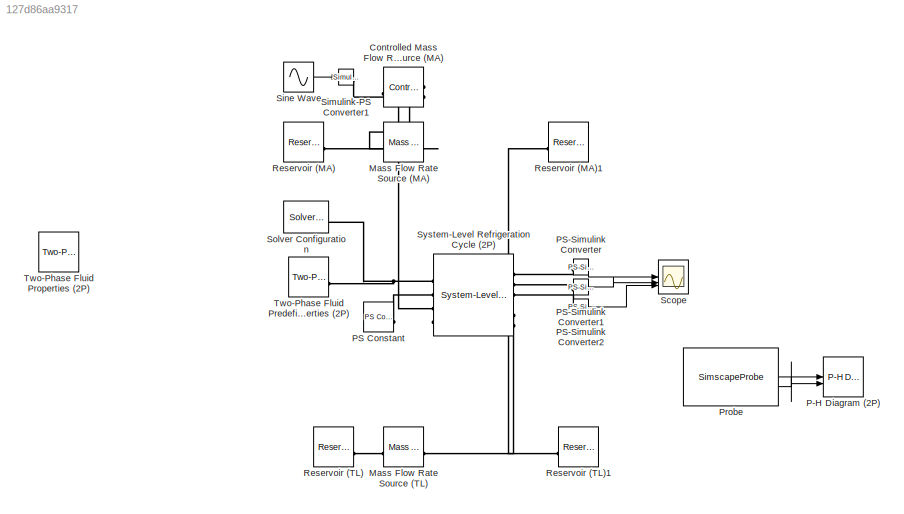
MODEL slx_127d86aa9317
KIND model
CONFIG AbsTol = 1e-3
CONFIG EnableMultiTasking = off
CONFIG FixedStep = auto
CONFIG MaxStep = auto
CONFIG MinStep = auto
CONFIG RelTol = 1e-3
CONFIG SampleTimeConstraint = Unconstrained
CONFIG SolverName = VariableStepAuto
CONFIG StartTime = 0.0
CONFIG StopTime = 600
BLOCK [Reference] Controlled Mass Flow Rate Source (MA)  REF=fl_lib/Moist Air/Sources/Controlled Mass Flow
Rate Source (MA)
  NameLocation = top
  SourceBlock = fl_lib/Moist Air/Sources/Controlled Mass Flow\nRate Source (MA)
  SourceType = Controlled Mass Flow\nRate Source (MA)
BLOCK [Reference] Mass Flow Rate Source (MA)  REF=fl_lib/Moist Air/Sources/Mass Flow Rate
Source (MA)
  Commented = on
  SourceBlock = fl_lib/Moist Air/Sources/Mass Flow Rate\nSource (MA)
  SourceType = Mass Flow Rate\nSource (MA)
BLOCK [Reference] Mass Flow Rate Source (TL)  REF=fl_lib/Thermal Liquid/Sources/Mass Flow Rate
Source (TL)
  SourceBlock = fl_lib/Thermal Liquid/Sources/Mass Flow Rate\nSource (TL)
  SourceType = Mass Flow Rate\nSource (TL)
BLOCK [Reference] P-H Diagram (2P)  REF=SimscapeFluids_lib/Two-Phase Fluid/Utilities/P-H Diagram (2P)
  SourceBlock = SimscapeFluids_lib/Two-Phase Fluid/Utilities/P-H Diagram (2P)
  SourceType = P-H Diagram (2P)
  UserDataPersistent = on
BLOCK [Reference] PS Constant  REF=fl_lib/Physical Signals/Sources/PS Constant
  SourceBlock = fl_lib/Physical Signals/Sources/PS Constant
  SourceType = PS Constant
BLOCK [Reference] PS-Simulink Converter  REF=nesl_utility/PS-Simulink
Converter
  SourceBlock = nesl_utility/PS-Simulink\nConverter
  SourceType = PS-Simulink\nConverter
BLOCK [Reference] PS-Simulink Converter1  REF=nesl_utility/PS-Simulink
Converter
  SourceBlock = nesl_utility/PS-Simulink\nConverter
  SourceType = PS-Simulink\nConverter
BLOCK [Reference] PS-Simulink Converter2  REF=nesl_utility/PS-Simulink
Converter
  SourceBlock = nesl_utility/PS-Simulink\nConverter
  SourceType = PS-Simulink\nConverter
BLOCK [SimscapeProbe] Probe
  BoundBlock = 11
  Variables = {h_cycle, p_cycle}
BLOCK [Reference] Reservoir (MA)  REF=fl_lib/Moist Air/Elements/Reservoir (MA)
  SourceBlock = fl_lib/Moist Air/Elements/Reservoir (MA)
  SourceType = Reservoir (MA)
BLOCK [Reference] Reservoir (MA)1  REF=fl_lib/Moist Air/Elements/Reservoir (MA)
  SourceBlock = fl_lib/Moist Air/Elements/Reservoir (MA)
  SourceType = Reservoir (MA)
BLOCK [Reference] Reservoir (TL)  REF=fl_lib/Thermal Liquid/Elements/Reservoir (TL)
  SourceBlock = fl_lib/Thermal Liquid/Elements/Reservoir (TL)
  SourceType = Reservoir (TL)
BLOCK [Reference] Reservoir (TL)1  REF=fl_lib/Thermal Liquid/Elements/Reservoir (TL)
  SourceBlock = fl_lib/Thermal Liquid/Elements/Reservoir (TL)
  SourceType = Reservoir (TL)
BLOCK [Scope] Scope
  Floating = off
  NumInputPorts = 3
  ScopeSpecificationString = Simulink.scopes.TimeScopeBlockCfg('CurrentConfiguration', extmgr.ConfigurationSet(extmgr.Configuration('Core','General UI',true),extmgr.Configuration('Core','Source UI',true),extmgr.Configuration('Sources','WiredSimulink',true),extmgr.Configuration('Visuals','Time Domain',true,'SerializedDisplays',{struct('MinYLimReal','1410.82108','MaxYLimReal','15213.6756','YLabelReal','','MinYLimMag','1410.8210...<+1465ch>
BLOCK [Reference] Simulink-PS Converter1  REF=nesl_utility/Simulink-PS
Converter
  SourceBlock = nesl_utility/Simulink-PS\nConverter
  SourceType = Simulink-PS\nConverter
BLOCK [Sin] Sine Wave
  Amplitude = 0.2
  Bias = 1
  Frequency = 2*pi/60
  SampleTime = 0
BLOCK [Reference] Solver Configuration  REF=nesl_utility/Solver
Configuration
  SourceBlock = nesl_utility/Solver\nConfiguration
  SourceType = Solver\nConfiguration
BLOCK [Reference] System-Level Refrigeration Cycle (2P)  REF=SimscapeFluids_lib/Two-Phase Fluid/Thermodynamic Cycles/System-Level
Refrigeration Cycle
(2P)
  SourceBlock = SimscapeFluids_lib/Two-Phase Fluid/Thermodynamic Cycles/System-Level\nRefrigeration Cycle\n(2P)
  SourceType = System-Level\nRefrigeration Cycle\n(2P)
BLOCK [Reference] Two-Phase Fluid Predefined Properties (2P)  REF=SimscapeFluids_lib/Two-Phase Fluid/Utilities/Two-Phase Fluid
Predefined
Properties (2P)
  NameLocation = left
  SourceBlock = SimscapeFluids_lib/Two-Phase Fluid/Utilities/Two-Phase Fluid\nPredefined\nProperties (2P)
  SourceType = Two-Phase Fluid\nPredefined\nProperties (2P)
BLOCK [Reference] Two-Phase Fluid Properties (2P)   REF=fl_lib/Two-Phase Fluid/Utilities/Two-Phase Fluid
Properties (2P)
  Commented = on
  SourceBlock = fl_lib/Two-Phase Fluid/Utilities/Two-Phase Fluid\nProperties (2P)
  SourceType = Two-Phase Fluid\nProperties (2P)
LINE PS-Simulink Converter1:1 -> Scope:2
LINE PS-Simulink Converter2:1 -> Scope:3
LINE PS-Simulink Converter:1 -> Scope:1
LINE Probe:1 -> P-H Diagram (2P):2
LINE Probe:2 -> P-H Diagram (2P):1
LINE Sine Wave:1 -> Simulink-PS Converter1:1
PNET net1: Controlled Mass Flow Rate Source (MA):LConn1 -- Mass Flow Rate Source (MA):LConn1 -- Reservoir (MA):LConn1
PLINE Controlled Mass Flow Rate Source (MA):LConn2 -- Simulink-PS Converter1:RConn1
PNET net2: Controlled Mass Flow Rate Source (MA):RConn1 -- Mass Flow Rate Source (MA):RConn1 -- System-Level Refrigeration Cycle (2P):LConn3
PLINE Mass Flow Rate Source (TL):LConn1 -- Reservoir (TL):LConn1
PLINE Mass Flow Rate Source (TL):RConn1 -- System-Level Refrigeration Cycle (2P):RConn5
PLINE PS Constant:RConn1 -- System-Level Refrigeration Cycle (2P):LConn2
PLINE PS-Simulink Converter1:LConn1 -- System-Level Refrigeration Cycle (2P):RConn2
PLINE PS-Simulink Converter2:LConn1 -- System-Level Refrigeration Cycle (2P):RConn3
PLINE PS-Simulink Converter:LConn1 -- System-Level Refrigeration Cycle (2P):RConn1
PLINE Reservoir (MA)1:LConn1 -- System-Level Refrigeration Cycle (2P):LConn4
PLINE Reservoir (TL)1:LConn1 -- System-Level Refrigeration Cycle (2P):RConn6
PNET net3: Solver Configuration:RConn1 -- System-Level Refrigeration Cycle (2P):LConn1 -- Two-Phase Fluid Predefined Properties (2P):RConn1
note: PNET lines group multi-terminal physical nets as a canonical sorted terminal list (undirected conserving connections); 2-terminal nets keep the pairwise PLINE form
